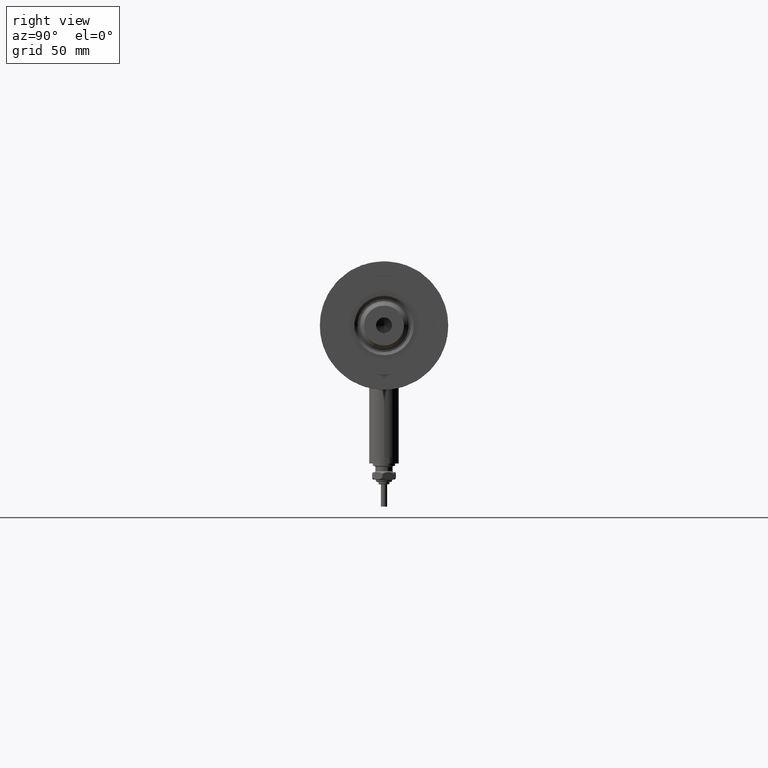
[diagram: clean part render]
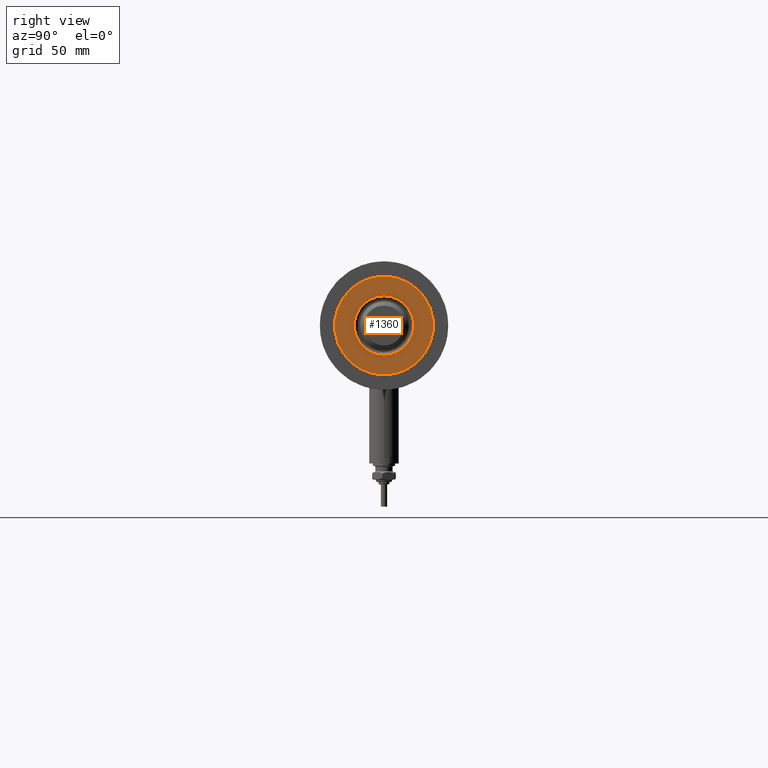
[diagram: same view with one face highlighted and labeled with its STEP entity id]
A machine part, right view. The second image highlights one B-rep face of the part: STEP entity #1360.
In plain terms, the highlighted planar face has unit normal (1, 0, -0).
Its self-contained STEP definition (entity closure, byte-faithful):
#65 = DIRECTION ( 'NONE',  ( 0.000000000000000000, 0.000000000000000000, 1.000000000000000000 ) ) ;
#476 = CARTESIAN_POINT ( 'NONE',  ( 0.000000000000000000, 0.000000000000000000, 33.50000000000000000 ) ) ;
#742 = CIRCLE ( 'NONE', #4306, 12.05000000000000426 ) ;
#784 = DIRECTION ( 'NONE',  ( 1.000000000000000000, 0.000000000000000000, -0.000000000000000000 ) ) ;
#827 = AXIS2_PLACEMENT_3D ( 'NONE', #2768, #6068, #784 ) ;
#847 = ORIENTED_EDGE ( 'NONE', *, *, #2799, .T. ) ;
#1086 = DIRECTION ( 'NONE',  ( 1.000000000000000000, 0.000000000000000000, 0.000000000000000000 ) ) ;
#1191 = EDGE_CURVE ( 'NONE', #5474, #2258, #6134, .T. ) ;
#1282 = DIRECTION ( 'NONE',  ( 1.000000000000000000, 0.000000000000000000, 0.000000000000000000 ) ) ;
#1360 = ADVANCED_FACE ( 'NONE', ( #6098, #1712 ), #5165, .T. ) ;
#1712 = FACE_OUTER_BOUND ( 'NONE', #1888, .T. ) ;
#1888 = EDGE_LOOP ( 'NONE', ( #2826, #3277 ) ) ;
#2006 = DIRECTION ( 'NONE',  ( 1.000000000000000000, 0.000000000000000000, 0.000000000000000000 ) ) ;
#2127 = CARTESIAN_POINT ( 'NONE',  ( -19.99999999999999645, 0.000000000000000000, 33.50000000000000000 ) ) ;
#2258 = VERTEX_POINT ( 'NONE', #2127 ) ;
#2316 = ORIENTED_EDGE ( 'NONE', *, *, #5540, .T. ) ;
#2501 = DIRECTION ( 'NONE',  ( -0.000000000000000000, -0.000000000000000000, -1.000000000000000000 ) ) ;
#2768 = CARTESIAN_POINT ( 'NONE',  ( 0.000000000000000000, 0.000000000000000000, 33.50000000000000000 ) ) ;
#2799 = EDGE_CURVE ( 'NONE', #6066, #3993, #742, .T. ) ;
#2826 = ORIENTED_EDGE ( 'NONE', *, *, #6278, .T. ) ;
#2942 = CARTESIAN_POINT ( 'NONE',  ( 19.99999999999999645, 2.449293598294706119E-15, 33.50000000000000000 ) ) ;
#3043 = DIRECTION ( 'NONE',  ( -0.000000000000000000, -0.000000000000000000, -1.000000000000000000 ) ) ;
#3139 = CARTESIAN_POINT ( 'NONE',  ( 0.000000000000000000, 0.000000000000000000, 33.50000000000000000 ) ) ;
#3277 = ORIENTED_EDGE ( 'NONE', *, *, #1191, .T. ) ;
#3481 = DIRECTION ( 'NONE',  ( 1.000000000000000000, 0.000000000000000000, 0.000000000000000000 ) ) ;
#3989 = CARTESIAN_POINT ( 'NONE',  ( -12.05000000000000426, 1.475699392972560823E-15, 33.50000000000000000 ) ) ;
#3993 = VERTEX_POINT ( 'NONE', #3989 ) ;
#4143 = EDGE_LOOP ( 'NONE', ( #847, #2316 ) ) ;
#4306 = AXIS2_PLACEMENT_3D ( 'NONE', #476, #3043, #1086 ) ;
#4427 = AXIS2_PLACEMENT_3D ( 'NONE', #5849, #2501, #3481 ) ;
#4825 = CARTESIAN_POINT ( 'NONE',  ( 12.05000000000000426, 0.000000000000000000, 33.50000000000000000 ) ) ;
#4943 = CIRCLE ( 'NONE', #5972, 19.99999999999999645 ) ;
#5165 = PLANE ( 'NONE',  #827 ) ;
#5474 = VERTEX_POINT ( 'NONE', #2942 ) ;
#5491 = CARTESIAN_POINT ( 'NONE',  ( 0.000000000000000000, 0.000000000000000000, 33.50000000000000000 ) ) ;
#5524 = AXIS2_PLACEMENT_3D ( 'NONE', #5491, #65, #2006 ) ;
#5540 = EDGE_CURVE ( 'NONE', #3993, #6066, #5969, .T. ) ;
#5849 = CARTESIAN_POINT ( 'NONE',  ( 0.000000000000000000, 0.000000000000000000, 33.50000000000000000 ) ) ;
#5969 = CIRCLE ( 'NONE', #4427, 12.05000000000000426 ) ;
#5972 = AXIS2_PLACEMENT_3D ( 'NONE', #3139, #6106, #1282 ) ;
#6066 = VERTEX_POINT ( 'NONE', #4825 ) ;
#6068 = DIRECTION ( 'NONE',  ( 0.000000000000000000, 0.000000000000000000, 1.000000000000000000 ) ) ;
#6098 = FACE_BOUND ( 'NONE', #4143, .T. ) ;
#6106 = DIRECTION ( 'NONE',  ( 0.000000000000000000, 0.000000000000000000, 1.000000000000000000 ) ) ;
#6134 = CIRCLE ( 'NONE', #5524, 19.99999999999999645 ) ;
#6278 = EDGE_CURVE ( 'NONE', #2258, #5474, #4943, .T. ) ;